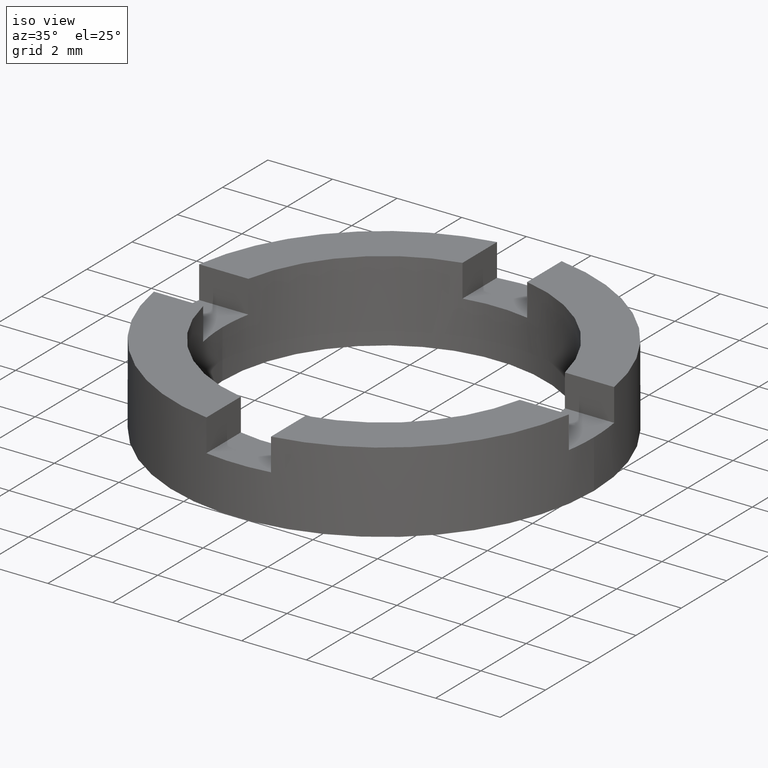
[diagram: clean part render]
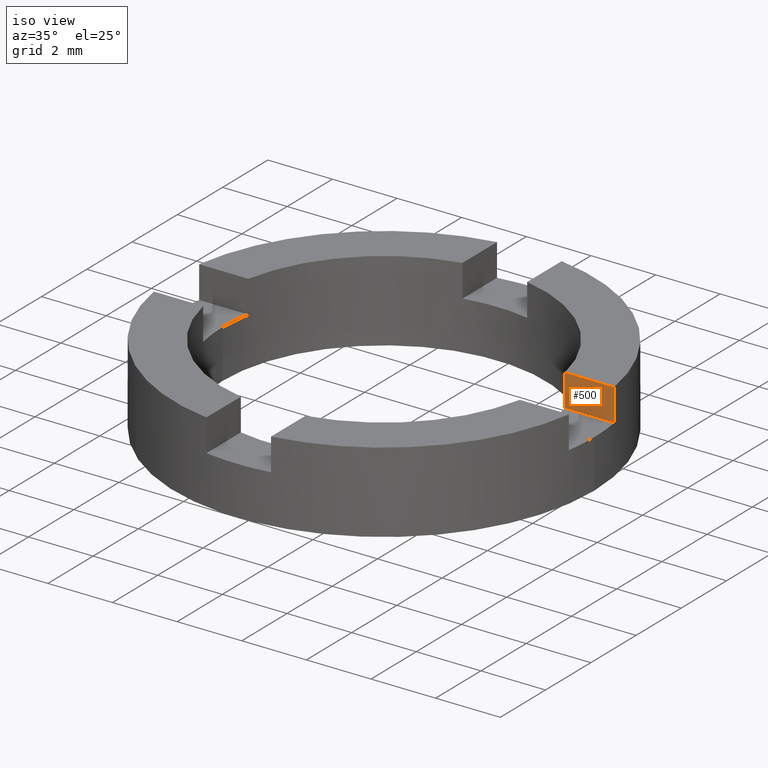
[diagram: same view with one face highlighted and labeled with its STEP entity id]
A machine part, iso view. The second image highlights one B-rep face of the part: STEP entity #500.
In plain terms, the highlighted planar face has unit normal (-0, -1, 0).
Its self-contained STEP definition (entity closure, byte-faithful):
#9 = CARTESIAN_POINT ( 'NONE',  ( 6.422616289332569117, 0.9999999999999749090, 1.500000000000000000 ) ) ;
#53 = LINE ( 'NONE', #9, #602 ) ;
#54 = FACE_OUTER_BOUND ( 'NONE', #528, .T. ) ;
#55 = LINE ( 'NONE', #424, #576 ) ;
#81 = LINE ( 'NONE', #529, #106 ) ;
#106 = VECTOR ( 'NONE', #384, 1000.000000000000000 ) ;
#116 = LINE ( 'NONE', #209, #333 ) ;
#117 = VERTEX_POINT ( 'NONE', #693 ) ;
#140 = DIRECTION ( 'NONE',  ( 1.000000000000000000, -3.736327486719276758E-15, 0.000000000000000000 ) ) ;
#168 = DIRECTION ( 'NONE',  ( 1.000000000000000000, -3.736327486719276758E-15, 0.000000000000000000 ) ) ;
#171 = DIRECTION ( 'NONE',  ( -0.000000000000000000, -0.000000000000000000, 1.000000000000000000 ) ) ;
#173 = PLANE ( 'NONE',  #779 ) ;
#205 = CARTESIAN_POINT ( 'NONE',  ( 4.898979485566360204, 0.9999999999999806821, 1.500000000000000000 ) ) ;
#209 = CARTESIAN_POINT ( 'NONE',  ( 3.736327486719272814E-15, 0.9999999999999988898, 1.500000000000000000 ) ) ;
#214 = CARTESIAN_POINT ( 'NONE',  ( 3.736327486719272814E-15, 0.9999999999999988898, 1.500000000000000000 ) ) ;
#228 = EDGE_CURVE ( 'NONE', #637, #117, #116, .T. ) ;
#254 = DIRECTION ( 'NONE',  ( -3.736327486719276758E-15, -1.000000000000000000, 0.000000000000000000 ) ) ;
#305 = EDGE_CURVE ( 'NONE', #637, #696, #81, .T. ) ;
#333 = VECTOR ( 'NONE', #168, 1000.000000000000000 ) ;
#353 = ORIENTED_EDGE ( 'NONE', *, *, #538, .T. ) ;
#384 = DIRECTION ( 'NONE',  ( -0.000000000000000000, -0.000000000000000000, 1.000000000000000000 ) ) ;
#389 = EDGE_CURVE ( 'NONE', #696, #708, #55, .T. ) ;
#396 = ORIENTED_EDGE ( 'NONE', *, *, #305, .F. ) ;
#424 = CARTESIAN_POINT ( 'NONE',  ( 3.736327486719272814E-15, 0.9999999999999988898, 2.500000000000000000 ) ) ;
#474 = DIRECTION ( 'NONE',  ( 1.000000000000000000, -3.736327486719276758E-15, 0.000000000000000000 ) ) ;
#500 = ADVANCED_FACE ( 'NONE', ( #54 ), #173, .T. ) ;
#520 = CARTESIAN_POINT ( 'NONE',  ( 4.898979485566360204, 0.9999999999999806821, 2.500000000000000000 ) ) ;
#528 = EDGE_LOOP ( 'NONE', ( #661, #396, #656, #353 ) ) ;
#529 = CARTESIAN_POINT ( 'NONE',  ( 4.898979485566360204, 0.9999999999999806821, 1.500000000000000000 ) ) ;
#538 = EDGE_CURVE ( 'NONE', #117, #708, #53, .T. ) ;
#563 = CARTESIAN_POINT ( 'NONE',  ( 6.422616289332569117, 0.9999999999999749090, 2.500000000000000000 ) ) ;
#576 = VECTOR ( 'NONE', #474, 1000.000000000000000 ) ;
#602 = VECTOR ( 'NONE', #171, 1000.000000000000000 ) ;
#637 = VERTEX_POINT ( 'NONE', #205 ) ;
#656 = ORIENTED_EDGE ( 'NONE', *, *, #228, .T. ) ;
#661 = ORIENTED_EDGE ( 'NONE', *, *, #389, .F. ) ;
#693 = CARTESIAN_POINT ( 'NONE',  ( 6.422616289332569117, 0.9999999999999749090, 1.500000000000000000 ) ) ;
#696 = VERTEX_POINT ( 'NONE', #520 ) ;
#708 = VERTEX_POINT ( 'NONE', #563 ) ;
#779 = AXIS2_PLACEMENT_3D ( 'NONE', #214, #254, #140 ) ;